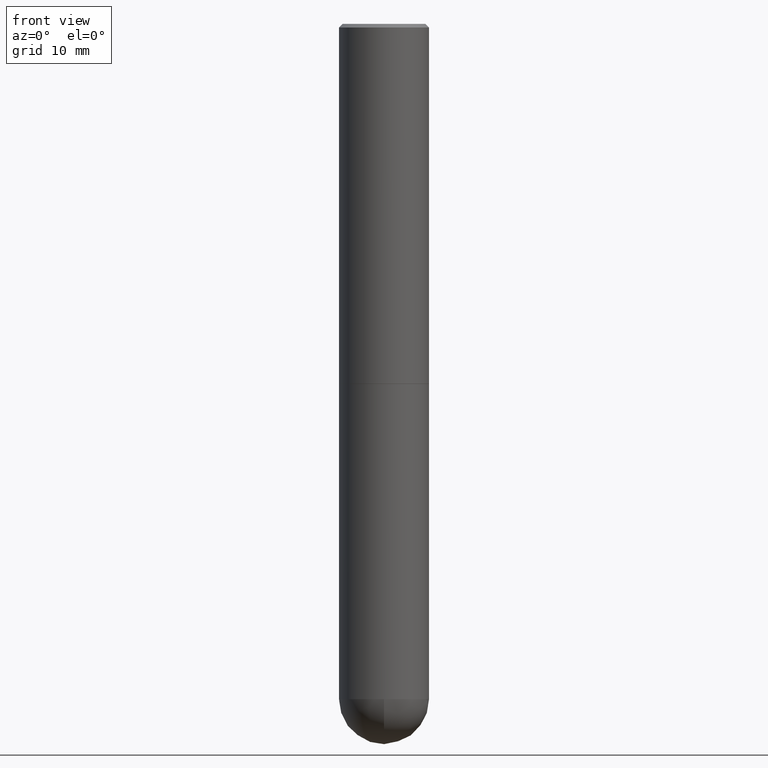
[diagram: clean part render]
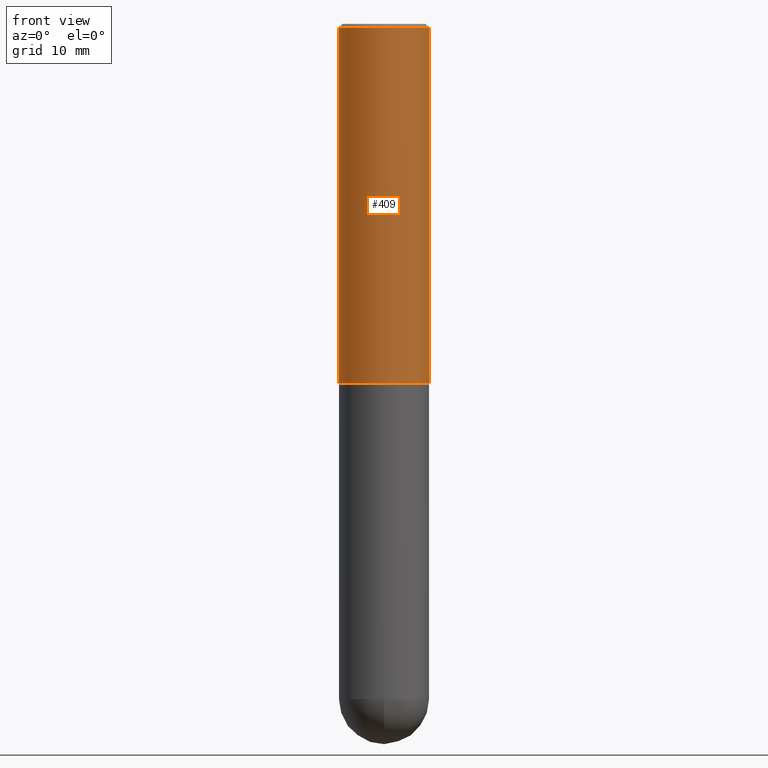
[diagram: same view with one face highlighted and labeled with its STEP entity id]
A machine part, front view. The second image highlights one B-rep face of the part: STEP entity #409.
In plain terms, the highlighted cylindrical surface (partial cylindrical patch) has radius 6.35 mm, axis along (-0, 0, 1).
Its self-contained STEP definition (entity closure, byte-faithful):
#16 = AXIS2_PLACEMENT_3D ( 'NONE', #198, #130, #254 ) ;
#18 = CARTESIAN_POINT ( 'NONE',  ( 0.000000000000000000, 0.000000000000000000, 0.000000000000000000 ) ) ;
#26 = EDGE_CURVE ( 'NONE', #75, #152, #296, .T. ) ;
#29 = DIRECTION ( 'NONE',  ( -2.445468806185136597E-29, 3.491481338843145583E-15, 1.000000000000000000 ) ) ;
#50 = EDGE_LOOP ( 'NONE', ( #138, #347, #105, #303 ) ) ;
#53 = AXIS2_PLACEMENT_3D ( 'NONE', #70, #29, #243 ) ;
#70 = CARTESIAN_POINT ( 'NONE',  ( 4.888492143564087591E-29, -6.979471196347447369E-15, -1.998999999999999888 ) ) ;
#71 = LINE ( 'NONE', #163, #210 ) ;
#75 = VERTEX_POINT ( 'NONE', #200 ) ;
#105 = ORIENTED_EDGE ( 'NONE', *, *, #26, .T. ) ;
#112 = VERTEX_POINT ( 'NONE', #196 ) ;
#116 = EDGE_CURVE ( 'NONE', #112, #410, #71, .T. ) ;
#120 = CARTESIAN_POINT ( 'NONE',  ( 0.2500000000000000000, -1.784954126219746189E-15, -0.02000000000000005593 ) ) ;
#122 = FACE_OUTER_BOUND ( 'NONE', #50, .T. ) ;
#130 = DIRECTION ( 'NONE',  ( -2.445468806185136597E-29, 3.491481338843145583E-15, 1.000000000000000000 ) ) ;
#138 = ORIENTED_EDGE ( 'NONE', *, *, #116, .F. ) ;
#152 = VERTEX_POINT ( 'NONE', #120 ) ;
#158 = DIRECTION ( 'NONE',  ( 1.000000000000000000, -6.982962677686267499E-15, 4.876176775795936353E-29 ) ) ;
#163 = CARTESIAN_POINT ( 'NONE',  ( -0.2500000000000001110, 1.776356839400251254E-15, -1.229733772563727146E-29 ) ) ;
#196 = CARTESIAN_POINT ( 'NONE',  ( -0.2500000000000002220, -1.748293572161902502E-15, -1.998999999999999888 ) ) ;
#198 = CARTESIAN_POINT ( 'NONE',  ( 4.890937612370287172E-31, -6.982962677686310098E-17, -0.02000000000000005593 ) ) ;
#200 = CARTESIAN_POINT ( 'NONE',  ( 0.2500000000000002776, -8.725211865769015625E-15, -1.998999999999999888 ) ) ;
#210 = VECTOR ( 'NONE', #334, 39.37007874015748143 ) ;
#215 = CIRCLE ( 'NONE', #53, 0.2500000000000002776 ) ;
#219 = AXIS2_PLACEMENT_3D ( 'NONE', #18, #343, #158 ) ;
#225 = EDGE_CURVE ( 'NONE', #410, #152, #376, .T. ) ;
#243 = DIRECTION ( 'NONE',  ( 1.000000000000000000, -6.982962677686266711E-15, 0.000000000000000000 ) ) ;
#251 = CYLINDRICAL_SURFACE ( 'NONE', #219, 0.2500000000000001110 ) ;
#254 = DIRECTION ( 'NONE',  ( 1.000000000000000000, -6.982962677686266711E-15, 0.000000000000000000 ) ) ;
#269 = CARTESIAN_POINT ( 'NONE',  ( 0.2500000000000001110, -1.745740669421567664E-15, 1.219044193948984649E-29 ) ) ;
#296 = LINE ( 'NONE', #269, #348 ) ;
#303 = ORIENTED_EDGE ( 'NONE', *, *, #225, .F. ) ;
#334 = DIRECTION ( 'NONE',  ( -2.445468806185136877E-29, 3.491481338843145188E-15, 1.000000000000000000 ) ) ;
#343 = DIRECTION ( 'NONE',  ( -2.445468806185136597E-29, 3.491481338843145583E-15, 1.000000000000000000 ) ) ;
#347 = ORIENTED_EDGE ( 'NONE', *, *, #366, .T. ) ;
#348 = VECTOR ( 'NONE', #390, 39.37007874015748143 ) ;
#366 = EDGE_CURVE ( 'NONE', #112, #75, #215, .T. ) ;
#376 = CIRCLE ( 'NONE', #16, 0.2500000000000000000 ) ;
#390 = DIRECTION ( 'NONE',  ( -2.445468806185136877E-29, 3.491481338843145188E-15, 1.000000000000000000 ) ) ;
#408 = CARTESIAN_POINT ( 'NONE',  ( -0.2500000000000000000, 1.675911042644703577E-15, -0.02000000000000005593 ) ) ;
#409 = ADVANCED_FACE ( 'NONE', ( #122 ), #251, .T. ) ;
#410 = VERTEX_POINT ( 'NONE', #408 ) ;